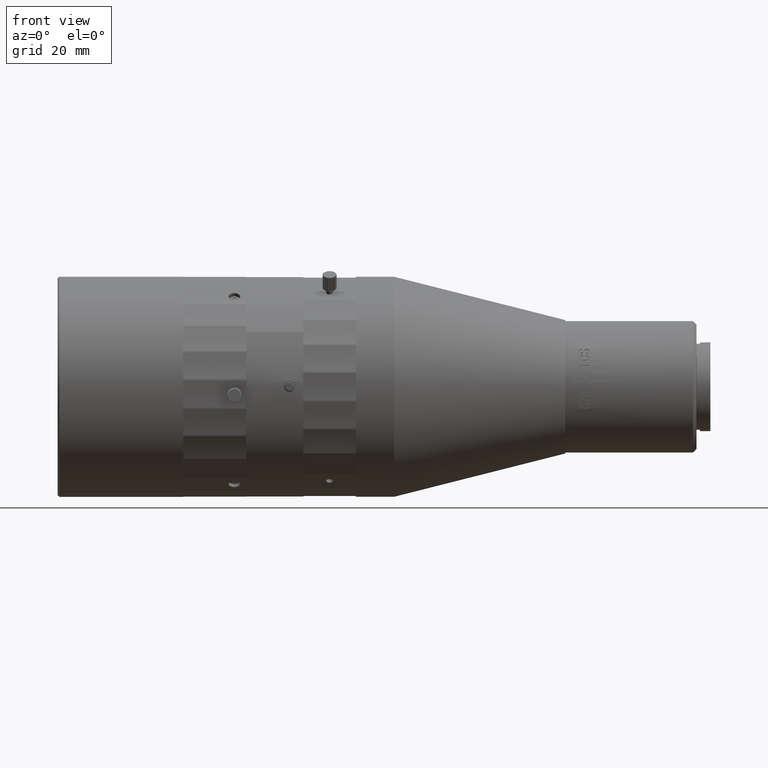
[diagram: clean part render]
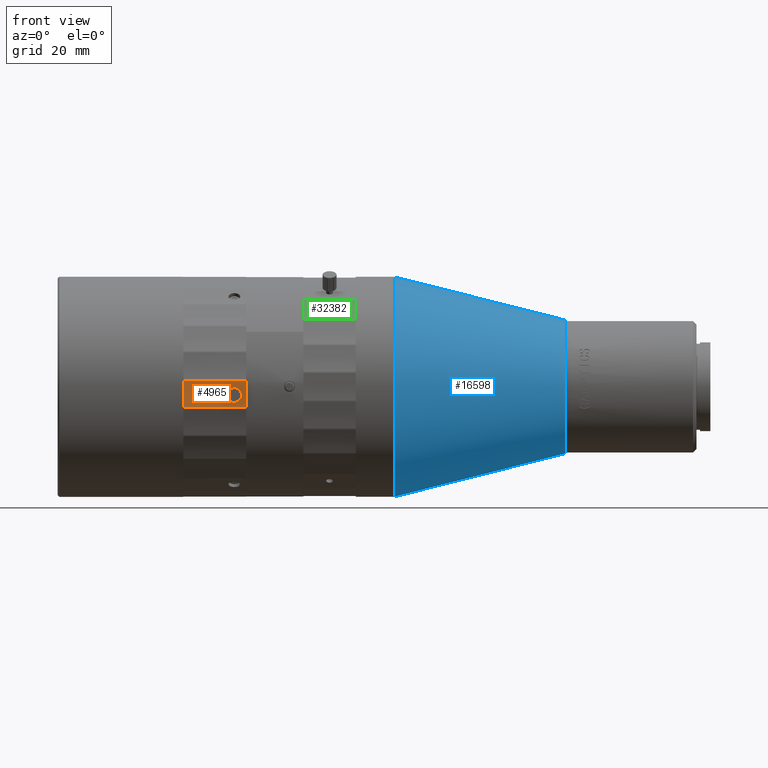
[diagram: same view with three faces highlighted in distinct colors, each labeled with its STEP entity id]
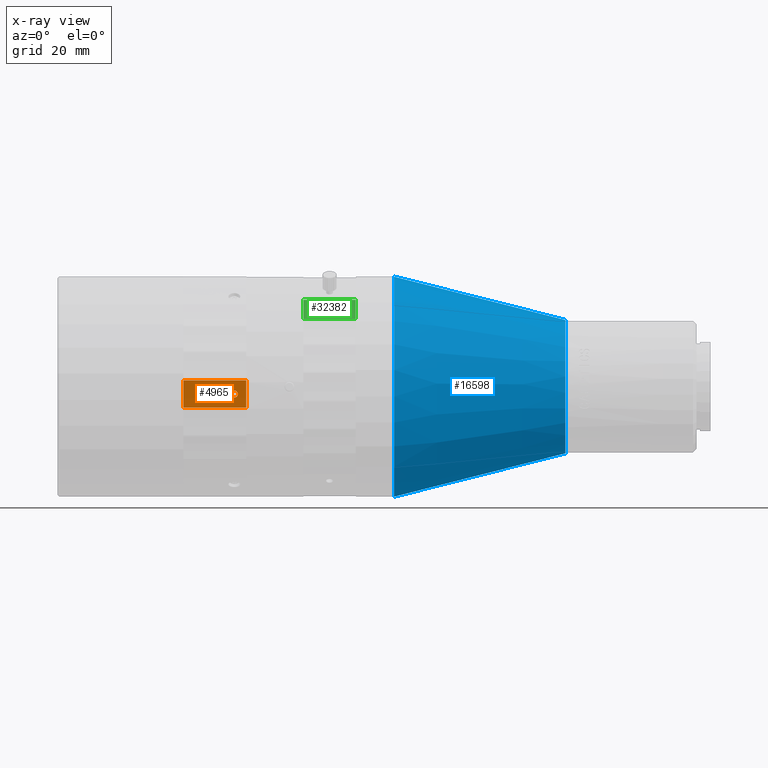
[diagram: x-ray of the same camera — body ghosted, the three highlighted faces saturated]
A machine part, front view with three faces highlighted in distinct colors.
The next image is the same camera in x-ray (body ghosted, the three faces saturated) — at least one of them is partly hidden behind the body in this view.
Their STEP definitions:

[orange] entity #4965 — the highlighted cylindrical surface (partial cylindrical patch) has radius 50 mm, axis along (1, 0, 0).
#1953 = CARTESIAN_POINT ( 'NONE',  ( -61.67900801390605636, -26.05837873480955480, 176.7503240431542224 ) ) ;
#2036 = CARTESIAN_POINT ( 'NONE',  ( -61.04111359272715731, -26.18209964213926355, 178.6193302055710888 ) ) ;
#4965 = ADVANCED_FACE ( 'NONE', ( #29526, #12669 ), #37273, .F. ) ;
#5390 = CARTESIAN_POINT ( 'NONE',  ( -76.14637415755200323, -76.00226446406246339, 174.3821436734762358 ) ) ;
#5994 = CARTESIAN_POINT ( 'NONE',  ( -61.28591834317203535, -26.19079869266530736, 178.7203979648115819 ) ) ;
#6167 = CARTESIAN_POINT ( 'NONE',  ( -62.05235330834333496, -26.18203197831978102, 178.6185384846461943 ) ) ;
#6242 = CARTESIAN_POINT ( 'NONE',  ( -60.93198960355423566, -26.06816687600761995, 176.9501430309885279 ) ) ;
#6847 = EDGE_CURVE ( 'NONE', #40018, #10030, #49092, .T. ) ;
#7032 = CARTESIAN_POINT ( 'NONE',  ( -61.04039502648220861, -26.06456503656831103, 176.8778964293904323 ) ) ;
#7238 = CIRCLE ( 'NONE', #46535, 50.00000000000003553 ) ;
#8671 = AXIS2_PLACEMENT_3D ( 'NONE', #5390, #42586, #26562 ) ;
#9214 = ORIENTED_EDGE ( 'NONE', *, *, #42825, .F. ) ;
#9665 = CARTESIAN_POINT ( 'NONE',  ( -62.54647114073161163, -26.12460653155857671, 177.8802569863204610 ) ) ;
#9749 = AXIS2_PLACEMENT_3D ( 'NONE', #45158, #13068, #12805 ) ;
#10030 = VERTEX_POINT ( 'NONE', #51301 ) ;
#10186 = CARTESIAN_POINT ( 'NONE',  ( -62.41939267982899509, -26.08410540064862104, 177.2443745946696652 ) ) ;
#10268 = CARTESIAN_POINT ( 'NONE',  ( -61.41374030205383860, -26.19304211084219958, 178.7457853369796510 ) ) ;
#10493 = EDGE_LOOP ( 'NONE', ( #19961, #30333, #9214, #23345 ) ) ;
#11090 = CARTESIAN_POINT ( 'NONE',  ( -60.67335563510859942, -26.15215597607871345, 178.2527578188756365 ) ) ;
#11965 = VECTOR ( 'NONE', #26949, 1000.000000000000000 ) ;
#12669 = FACE_BOUND ( 'NONE', #49541, .T. ) ;
#12805 = DIRECTION ( 'NONE',  ( 0.000000000000000000, 0.5571762757581956160, -0.8303942423525267902 ) ) ;
#13068 = DIRECTION ( 'NONE',  ( -1.000000000000000000, 0.000000000000000000, 0.000000000000000000 ) ) ;
#14342 = CARTESIAN_POINT ( 'NONE',  ( -60.74551175422396199, -26.07810882293548360, 177.1366683428333602 ) ) ;
#14792 = CARTESIAN_POINT ( 'NONE',  ( -62.52122140049895194, -26.13371339337619403, 178.0074213367221319 ) ) ;
#14833 = LINE ( 'NONE', #18053, #21465 ) ;
#14914 = CARTESIAN_POINT ( 'NONE',  ( -61.54637415755200180, -26.19304211084225287, 178.7457853369796510 ) ) ;
#15890 = VERTEX_POINT ( 'NONE', #49897 ) ;
#18053 = CARTESIAN_POINT ( 'NONE',  ( -76.14637415755200323, -26.00541126072117137, 173.8211893406310651 ) ) ;
#18367 = CARTESIAN_POINT ( 'NONE',  ( -60.67280241176887046, -26.08415545373084399, 177.2452568144041720 ) ) ;
#18666 = CARTESIAN_POINT ( 'NONE',  ( -76.14637415755200323, -26.53410692679403837, 181.6554778379421862 ) ) ;
#18928 = LINE ( 'NONE', #18666, #11965 ) ;
#19961 = ORIENTED_EDGE ( 'NONE', *, *, #42185, .F. ) ;
#20216 = VERTEX_POINT ( 'NONE', #44433 ) ;
#21465 = VECTOR ( 'NONE', #34864, 1000.000000000000000 ) ;
#22565 = CARTESIAN_POINT ( 'NONE',  ( -61.80631252403343012, -26.19078626277440236, 178.7202590859754139 ) ) ;
#22842 = CARTESIAN_POINT ( 'NONE',  ( -62.54627671595101646, -26.10676653815119153, 177.6158480982421679 ) ) ;
#22911 = CARTESIAN_POINT ( 'NONE',  ( -61.28643581750396407, -26.05957299119131321, 176.7759219370184098 ) ) ;
#23186 = CARTESIAN_POINT ( 'NONE',  ( -60.57152691507034348, -26.09879290335515378, 177.4899644879347704 ) ) ;
#23345 = ORIENTED_EDGE ( 'NONE', *, *, #29487, .T. ) ;
#23573 = B_SPLINE_CURVE_WITH_KNOTS ( 'NONE', 3,
 ( #38597, #1953, #30038, #38334, #30304, #51434, #10186, #50900, #22842, #9665, #14792, #43105, #26570, #51160, #6167, #22565, #31096, #38856 ),
 .UNSPECIFIED., .F., .F.,
 ( 4, 2, 2, 2, 2, 2, 2, 2, 4 ),
 ( 0.000000000000000000, 0.1250000000000025258, 0.2500000000000050515, 0.3750000000000075495, 0.5000000000000075495, 0.6250000000000075495, 0.7500000000000049960, 0.8750000000000025535, 1.000000000000000000 ),
 .UNSPECIFIED. ) ;
#24172 = CARTESIAN_POINT ( 'NONE',  ( -61.41408872935691932, -26.05838194125437113, 176.7503916656697243 ) ) ;
#26393 = CARTESIAN_POINT ( 'NONE',  ( -60.74559538798953895, -26.16070338379993032, 178.3605304839963424 ) ) ;
#26562 = DIRECTION ( 'NONE',  ( 0.000000000000000000, 0.5571762757581897318, -0.8303942423525308980 ) ) ;
#26570 = CARTESIAN_POINT ( 'NONE',  ( -62.34723656716958118, -26.16068494217448048, 178.3602931676531398 ) ) ;
#26949 = DIRECTION ( 'NONE',  ( 1.000000000000000000, 0.000000000000000000, 0.000000000000000000 ) ) ;
#27048 = CARTESIAN_POINT ( 'NONE',  ( -76.14637415755200323, -26.53410692679400995, 181.6554778379421577 ) ) ;
#28467 = EDGE_CURVE ( 'NONE', #15890, #48946, #23573, .T. ) ;
#29167 = VERTEX_POINT ( 'NONE', #27048 ) ;
#29487 = EDGE_CURVE ( 'NONE', #29167, #20216, #7238, .T. ) ;
#29526 = FACE_OUTER_BOUND ( 'NONE', #10493, .T. ) ;
#29960 = B_SPLINE_CURVE_WITH_KNOTS ( 'NONE', 3,
 ( #30643, #10268, #5994, #2036, #52752, #26393, #11090, #32402, #31184, #47751, #23186, #18367, #14342, #6242, #7032, #22911, #24172, #36434 ),
 .UNSPECIFIED., .F., .F.,
 ( 4, 2, 2, 2, 2, 2, 2, 2, 4 ),
 ( 0.000000000000000000, 0.1250000000000000000, 0.2500000000000000000, 0.3750000000000000000, 0.5000000000000000000, 0.6250000000000000000, 0.7500000000000000000, 0.8750000000000000000, 1.000000000000000000 ),
 .UNSPECIFIED. ) ;
#30038 = CARTESIAN_POINT ( 'NONE',  ( -61.80682997090688957, -26.05956664881500728, 176.7757826450667267 ) ) ;
#30304 = CARTESIAN_POINT ( 'NONE',  ( -62.15983364595976468, -26.06812675780968291, 176.9493725422727834 ) ) ;
#30333 = ORIENTED_EDGE ( 'NONE', *, *, #6847, .F. ) ;
#30643 = CARTESIAN_POINT ( 'NONE',  ( -61.54637415755200180, -26.19304211084225287, 178.7457853369796510 ) ) ;
#31096 = CARTESIAN_POINT ( 'NONE',  ( -61.67865960448796159, -26.19303620273533539, 178.7457178983054575 ) ) ;
#31184 = CARTESIAN_POINT ( 'NONE',  ( -60.54647159931810307, -26.12470128824671534, 177.8816078072619007 ) ) ;
#32402 = CARTESIAN_POINT ( 'NONE',  ( -60.57188730908600149, -26.13380992820853521, 178.0087415739588437 ) ) ;
#34864 = DIRECTION ( 'NONE',  ( -1.000000000000000000, 0.000000000000000000, 0.000000000000000000 ) ) ;
#36434 = CARTESIAN_POINT ( 'NONE',  ( -61.54637415755200180, -26.05837873480961520, 176.7503240431541940 ) ) ;
#37273 = CYLINDRICAL_SURFACE ( 'NONE', #8671, 50.00000000000002132 ) ;
#38334 = CARTESIAN_POINT ( 'NONE',  ( -62.05163472340192499, -26.06452571312087230, 176.8771027982207613 ) ) ;
#38597 = CARTESIAN_POINT ( 'NONE',  ( -61.54637415755200180, -26.05837873480961520, 176.7503240431541940 ) ) ;
#38856 = CARTESIAN_POINT ( 'NONE',  ( -61.54637415755200180, -26.19304211084225287, 178.7457853369796510 ) ) ;
#39906 = EDGE_CURVE ( 'NONE', #48946, #15890, #29960, .T. ) ;
#40018 = VERTEX_POINT ( 'NONE', #41241 ) ;
#41241 = CARTESIAN_POINT ( 'NONE',  ( -58.14637415755200323, -26.53410692679400995, 181.6554778379421577 ) ) ;
#42185 = EDGE_CURVE ( 'NONE', #10030, #20216, #14833, .T. ) ;
#42586 = DIRECTION ( 'NONE',  ( 1.000000000000000000, 0.000000000000000000, 0.000000000000000000 ) ) ;
#42825 = EDGE_CURVE ( 'NONE', #29167, #40018, #18928, .T. ) ;
#43105 = CARTESIAN_POINT ( 'NONE',  ( -62.41994590286986266, -26.15208704235624282, 178.2518768748333287 ) ) ;
#43258 = ORIENTED_EDGE ( 'NONE', *, *, #28467, .T. ) ;
#44433 = CARTESIAN_POINT ( 'NONE',  ( -76.14637415755200323, -26.00541126072117137, 173.8211893406310651 ) ) ;
#45158 = CARTESIAN_POINT ( 'NONE',  ( -58.14637415755200323, -76.00226446406246339, 174.3821436734762358 ) ) ;
#46535 = AXIS2_PLACEMENT_3D ( 'NONE', #52210, #51957, #48710 ) ;
#47751 = CARTESIAN_POINT ( 'NONE',  ( -60.54627717420731869, -26.10685413404474886, 177.6171994041098117 ) ) ;
#48666 = ORIENTED_EDGE ( 'NONE', *, *, #39906, .T. ) ;
#48710 = DIRECTION ( 'NONE',  ( 0.000000000000000000, 0.5571762757581956160, -0.8303942423525267902 ) ) ;
#48946 = VERTEX_POINT ( 'NONE', #14914 ) ;
#49092 = CIRCLE ( 'NONE', #9749, 50.00000000000003553 ) ;
#49541 = EDGE_LOOP ( 'NONE', ( #48666, #43258 ) ) ;
#49897 = CARTESIAN_POINT ( 'NONE',  ( -61.54637415755200180, -26.05837873480961520, 176.7503240431541940 ) ) ;
#50900 = CARTESIAN_POINT ( 'NONE',  ( -62.52086100618436859, -26.09871117884614478, 177.4886432527611362 ) ) ;
#51160 = CARTESIAN_POINT ( 'NONE',  ( -62.16075870526026392, -26.17589426729403357, 178.5464630235369725 ) ) ;
#51301 = CARTESIAN_POINT ( 'NONE',  ( -58.14637415755200323, -26.00541126072117137, 173.8211893406310651 ) ) ;
#51434 = CARTESIAN_POINT ( 'NONE',  ( -62.34715292760302674, -26.07809521241497563, 177.1364307072934707 ) ) ;
#51957 = DIRECTION ( 'NONE',  ( -1.000000000000000000, 0.000000000000000000, 0.000000000000000000 ) ) ;
#52210 = CARTESIAN_POINT ( 'NONE',  ( -76.14637415755200323, -76.00226446406246339, 174.3821436734762358 ) ) ;
#52752 = CARTESIAN_POINT ( 'NONE',  ( -60.93291466865566974, -26.17595803344867633, 178.5472319095447062 ) ) ;

[blue] entity #16598 — the highlighted conical surface has half-angle 14.201 deg.
#776 = ORIENTED_EDGE ( 'NONE', *, *, #46567, .F. ) ;
#1154 = DIRECTION ( 'NONE',  ( 0.000000000000000000, 0.03182812208006297744, 0.9994933569788527761 ) ) ;
#1212 = DIRECTION ( 'NONE',  ( -0.9694402031123322550, -0.007808320776762408405, -0.2452034312895461921 ) ) ;
#2705 = DIRECTION ( 'NONE',  ( 1.000000000000000000, 0.000000000000000000, 0.000000000000000000 ) ) ;
#2916 = DIRECTION ( 'NONE',  ( -0.9694402031123322550, 0.007808320776762438763, 0.2452034312895461921 ) ) ;
#4218 = EDGE_CURVE ( 'NONE', #48085, #24564, #47591, .T. ) ;
#5093 = AXIS2_PLACEMENT_3D ( 'NONE', #34269, #2705, #28153 ) ;
#5368 = DIRECTION ( 'NONE',  ( -1.000000000000000000, 0.000000000000000000, 0.000000000000000000 ) ) ;
#5379 = CARTESIAN_POINT ( 'NONE',  ( 33.19362584244050396, 5.521608132288194248, 198.9330666898957816 ) ) ;
#6905 = AXIS2_PLACEMENT_3D ( 'NONE', #8568, #8321, #12101 ) ;
#8321 = DIRECTION ( 'NONE',  ( -1.000000000000000000, 0.000000000000000000, 0.000000000000000000 ) ) ;
#8568 = CARTESIAN_POINT ( 'NONE',  ( 33.19362584244050396, 4.913691000558999988, 179.8427435715999820 ) ) ;
#8910 = LINE ( 'NONE', #29814, #33286 ) ;
#9026 = EDGE_LOOP ( 'NONE', ( #776, #12109, #47500, #41035 ) ) ;
#9203 = CARTESIAN_POINT ( 'NONE',  ( -15.80637415756080344, 3.911105155037019276, 148.3587028267661196 ) ) ;
#11243 = CIRCLE ( 'NONE', #6905, 19.09999999999969233 ) ;
#12101 = DIRECTION ( 'NONE',  ( 0.000000000000000000, 0.03182812208006301907, 0.9994933569788528871 ) ) ;
#12109 = ORIENTED_EDGE ( 'NONE', *, *, #43787, .T. ) ;
#14498 = CARTESIAN_POINT ( 'NONE',  ( -15.80637415756080344, 5.916276846080984697, 211.3267843164338728 ) ) ;
#16598 = ADVANCED_FACE ( 'NONE', ( #17461 ), #22031, .T. ) ;
#17461 = FACE_OUTER_BOUND ( 'NONE', #9026, .T. ) ;
#19000 = CARTESIAN_POINT ( 'NONE',  ( -15.80637415756085140, 5.916276846080984697, 211.3267843164338728 ) ) ;
#22031 = CONICAL_SURFACE ( 'NONE', #51906, 31.50000000000001776, 0.2478577338667383445 ) ;
#24564 = VERTEX_POINT ( 'NONE', #14498 ) ;
#28153 = DIRECTION ( 'NONE',  ( 0.000000000000000000, 0.03182812208006297744, 0.9994933569788527761 ) ) ;
#29758 = CARTESIAN_POINT ( 'NONE',  ( -15.80637415756085140, 4.913691000558999988, 179.8427435715999820 ) ) ;
#29814 = CARTESIAN_POINT ( 'NONE',  ( -15.80637415756085140, 3.911105155037019276, 148.3587028267661196 ) ) ;
#31195 = VERTEX_POINT ( 'NONE', #9203 ) ;
#33286 = VECTOR ( 'NONE', #1212, 1000.000000000000000 ) ;
#34269 = CARTESIAN_POINT ( 'NONE',  ( -15.80637415756080344, 4.913691000558999988, 179.8427435715999820 ) ) ;
#41035 = ORIENTED_EDGE ( 'NONE', *, *, #47240, .T. ) ;
#41422 = VECTOR ( 'NONE', #2916, 1000.000000000000000 ) ;
#43265 = CARTESIAN_POINT ( 'NONE',  ( 33.19362584244050396, 4.305773868829810169, 160.7524204533042109 ) ) ;
#43787 = EDGE_CURVE ( 'NONE', #52925, #48085, #11243, .T. ) ;
#46567 = EDGE_CURVE ( 'NONE', #52925, #31195, #8910, .T. ) ;
#47240 = EDGE_CURVE ( 'NONE', #24564, #31195, #51248, .T. ) ;
#47500 = ORIENTED_EDGE ( 'NONE', *, *, #4218, .T. ) ;
#47591 = LINE ( 'NONE', #19000, #41422 ) ;
#48085 = VERTEX_POINT ( 'NONE', #5379 ) ;
#51248 = CIRCLE ( 'NONE', #5093, 31.50000000000001776 ) ;
#51906 = AXIS2_PLACEMENT_3D ( 'NONE', #29758, #5368, #1154 ) ;
#52925 = VERTEX_POINT ( 'NONE', #43265 ) ;

[green] entity #32382 — the highlighted cylindrical surface (partial cylindrical patch) has radius 50 mm, axis along (1, 0, 0).
#4595 = DIRECTION ( 'NONE',  ( 0.000000000000000000, 0.000000000000000000, -1.000000000000000000 ) ) ;
#4896 = DIRECTION ( 'NONE',  ( 0.000000000000000000, -4.440892098500627739E-15, -1.000000000000000000 ) ) ;
#5415 = VERTEX_POINT ( 'NONE', #24279 ) ;
#6626 = EDGE_CURVE ( 'NONE', #17846, #27135, #18891, .T. ) ;
#10217 = DIRECTION ( 'NONE',  ( -1.000000000000000000, 0.000000000000000000, 0.000000000000000000 ) ) ;
#11393 = CARTESIAN_POINT ( 'NONE',  ( -41.80637415755971631, -14.41035183708939726, 204.7190650120516011 ) ) ;
#12468 = DIRECTION ( 'NONE',  ( -1.000000000000000000, 0.000000000000000000, 0.000000000000000000 ) ) ;
#12735 = CARTESIAN_POINT ( 'NONE',  ( -26.80637415756004671, -19.96263043989225139, 199.1667864092488287 ) ) ;
#13799 = EDGE_LOOP ( 'NONE', ( #51814, #21012, #29292, #24190 ) ) ;
#15550 = CIRCLE ( 'NONE', #45397, 49.99999999999998579 ) ;
#16197 = EDGE_CURVE ( 'NONE', #27135, #29999, #21093, .T. ) ;
#17846 = VERTEX_POINT ( 'NONE', #11393 ) ;
#18891 = LINE ( 'NONE', #31432, #39662 ) ;
#19532 = AXIS2_PLACEMENT_3D ( 'NONE', #49824, #32711, #4595 ) ;
#19919 = FACE_OUTER_BOUND ( 'NONE', #13799, .T. ) ;
#20572 = VECTOR ( 'NONE', #10217, 1000.000000000000000 ) ;
#21012 = ORIENTED_EDGE ( 'NONE', *, *, #35278, .F. ) ;
#21093 = CIRCLE ( 'NONE', #50972, 49.99999999999998579 ) ;
#23179 = DIRECTION ( 'NONE',  ( 1.000000000000000000, 0.000000000000000000, 0.000000000000000000 ) ) ;
#24190 = ORIENTED_EDGE ( 'NONE', *, *, #6626, .F. ) ;
#24279 = CARTESIAN_POINT ( 'NONE',  ( -41.80637415755971631, -19.96263043989225139, 199.1667864092488287 ) ) ;
#25014 = EDGE_CURVE ( 'NONE', #17846, #5415, #15550, .T. ) ;
#25275 = DIRECTION ( 'NONE',  ( -1.000000000000000000, 0.000000000000000000, 0.000000000000000000 ) ) ;
#26875 = CARTESIAN_POINT ( 'NONE',  ( -41.80637415755971631, -19.96263043989229757, 199.1667864092488287 ) ) ;
#27135 = VERTEX_POINT ( 'NONE', #38240 ) ;
#27162 = CYLINDRICAL_SURFACE ( 'NONE', #19532, 49.99999999999998579 ) ;
#29292 = ORIENTED_EDGE ( 'NONE', *, *, #16197, .F. ) ;
#29999 = VERTEX_POINT ( 'NONE', #12735 ) ;
#31432 = CARTESIAN_POINT ( 'NONE',  ( -41.80637415755971631, -14.41035183708939726, 204.7190650120516011 ) ) ;
#32001 = DIRECTION ( 'NONE',  ( 0.000000000000000000, -4.440892098500627739E-15, -1.000000000000000000 ) ) ;
#32382 = ADVANCED_FACE ( 'NONE', ( #19919 ), #27162, .F. ) ;
#32711 = DIRECTION ( 'NONE',  ( 1.000000000000000000, 0.000000000000000000, 0.000000000000000000 ) ) ;
#35278 = EDGE_CURVE ( 'NONE', #29999, #5415, #38885, .T. ) ;
#36010 = CARTESIAN_POINT ( 'NONE',  ( -26.80637415756004671, -52.43266895366949143, 237.1891035258294949 ) ) ;
#37298 = CARTESIAN_POINT ( 'NONE',  ( -41.80637415755971631, -52.43266895366949143, 237.1891035258294949 ) ) ;
#38240 = CARTESIAN_POINT ( 'NONE',  ( -26.80637415756004671, -14.41035183708939726, 204.7190650120516011 ) ) ;
#38885 = LINE ( 'NONE', #26875, #20572 ) ;
#39662 = VECTOR ( 'NONE', #23179, 1000.000000000000000 ) ;
#45397 = AXIS2_PLACEMENT_3D ( 'NONE', #37298, #25275, #4896 ) ;
#49824 = CARTESIAN_POINT ( 'NONE',  ( -41.80637415755971631, -52.43266895366949143, 237.1891035258294949 ) ) ;
#50972 = AXIS2_PLACEMENT_3D ( 'NONE', #36010, #12468, #32001 ) ;
#51814 = ORIENTED_EDGE ( 'NONE', *, *, #25014, .T. ) ;